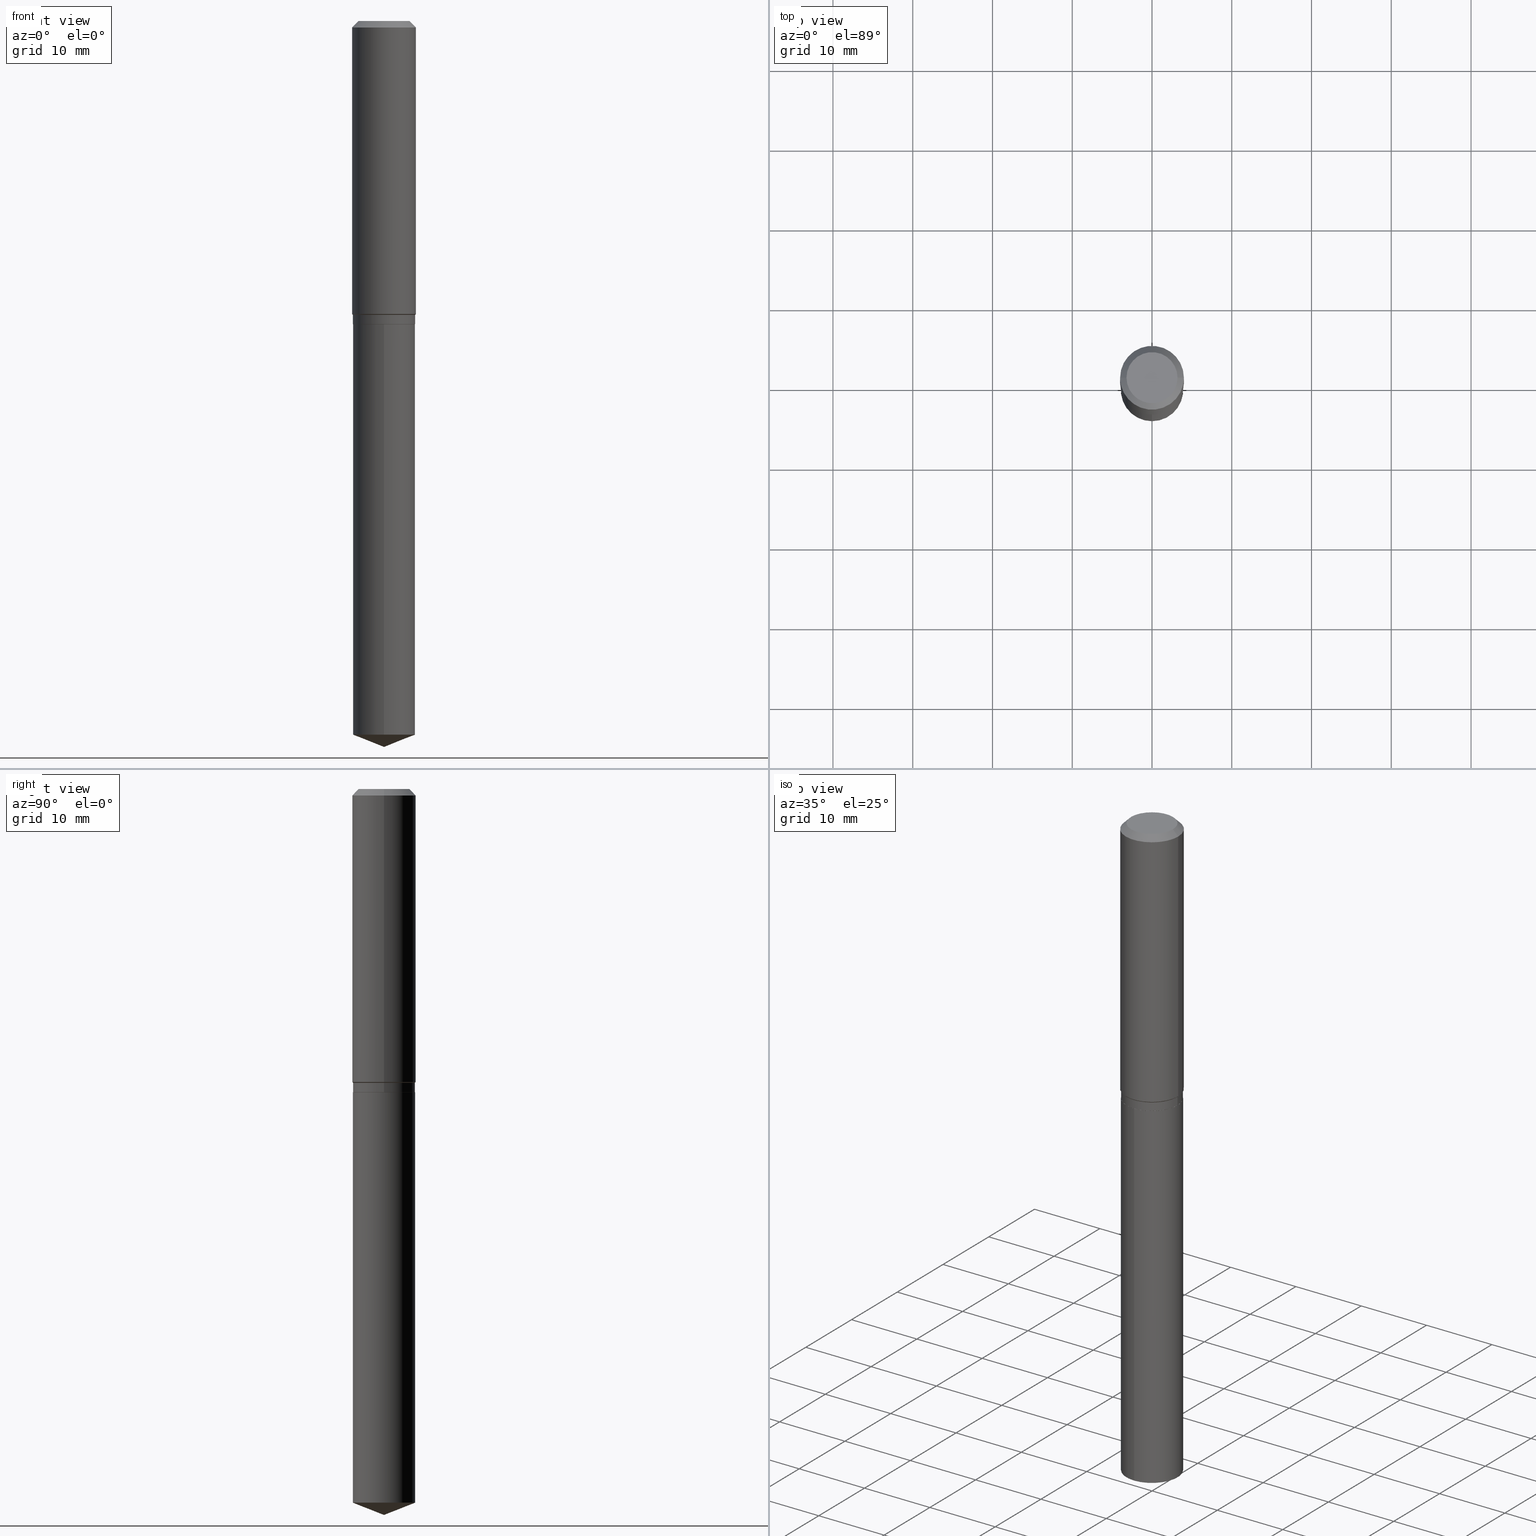
[diagram: canonical four-view strip — front | top / right | iso, engineering-drawing reading convention]
A machine part, canonical four-view strip (front | top / right | iso — engineering-drawing reading convention). The complete STEP part file that produces these views, byte-faithful:
ISO-10303-21;
HEADER;
FILE_DESCRIPTION (( 'STEP AP203' ),
    '1' );
FILE_NAME ('66551.STEP',
    '2024-04-25T00:47:38',
    ( '' ),
    ( '' ),
    'SwSTEP 2.0',
    'SolidWorks 2023',
    '' );
FILE_SCHEMA (( 'CONFIG_CONTROL_DESIGN' ));
ENDSEC;

DATA;
#1 = CC_DESIGN_PERSON_AND_ORGANIZATION_ASSIGNMENT ( #397, #434, ( #461 ) ) ;
#2 = ORIENTED_EDGE ( 'NONE', *, *, #449, .F. ) ;
#3 = FACE_OUTER_BOUND ( 'NONE', #119, .T. ) ;
#4 = CYLINDRICAL_SURFACE ( 'NONE', #117, 0.1535499999999999921 ) ;
#5 = ORIENTED_EDGE ( 'NONE', *, *, #444, .F. ) ;
#6 = CYLINDRICAL_SURFACE ( 'NONE', #427, 0.1575000000000000844 ) ;
#7 = APPLICATION_CONTEXT ( 'configuration controlled 3d designs of mechanical parts and assemblies' ) ;
#8 = VECTOR ( 'NONE', #86, 39.37007874015748143 ) ;
#9 = AXIS2_PLACEMENT_3D ( 'NONE', #305, #76, #162 ) ;
#10 = CIRCLE ( 'NONE', #19, 0.1530499999999999916 ) ;
#11 = LINE ( 'NONE', #173, #236 ) ;
#12 = DIRECTION ( 'NONE',  ( 0.000000000000000000, 0.000000000000000000, 1.000000000000000000 ) ) ;
#13 = DIRECTION ( 'NONE',  ( -6.982962677686265922E-15, -1.000000000000000000, 3.498627837350033410E-15 ) ) ;
#14 = APPROVAL_ROLE ( '' ) ;
#15 = FACE_OUTER_BOUND ( 'NONE', #364, .T. ) ;
#16 = ORIENTED_EDGE ( 'NONE', *, *, #261, .T. ) ;
#17 = DIRECTION ( 'NONE',  ( -2.445468806185136597E-29, 3.491481338843145583E-15, 1.000000000000000000 ) ) ;
#18 = CIRCLE ( 'NONE', #322, 0.1535499999999999921 ) ;
#19 = AXIS2_PLACEMENT_3D ( 'NONE', #194, #341, #197 ) ;
#20 = DIRECTION ( 'NONE',  ( 2.445468806185136597E-29, -3.491481338843145583E-15, -1.000000000000000000 ) ) ;
#21 = ORIENTED_EDGE ( 'NONE', *, *, #242, .T. ) ;
#22 = APPROVAL ( #94, 'UNSPECIFIED' ) ;
#23 = DATE_AND_TIME ( #372, #79 ) ;
#24 = ORIENTED_EDGE ( 'NONE', *, *, #261, .F. ) ;
#25 = DIRECTION ( 'NONE',  ( -2.445425864037539637E-29, 3.491542834442619495E-15, 1.000000000000000000 ) ) ;
#26 = ORIENTED_EDGE ( 'NONE', *, *, #314, .F. ) ;
#27 = ORIENTED_EDGE ( 'NONE', *, *, #42, .T. ) ;
#28 = EDGE_CURVE ( 'NONE', #477, #192, #245, .T. ) ;
#29 = AXIS2_PLACEMENT_3D ( 'NONE', #458, #159, #487 ) ;
#30 = CC_DESIGN_SECURITY_CLASSIFICATION ( #110, ( #37 ) ) ;
#31 = ORIENTED_EDGE ( 'NONE', *, *, #123, .F. ) ;
#32 = ORIENTED_EDGE ( 'NONE', *, *, #242, .F. ) ;
#33 = CARTESIAN_POINT ( 'NONE',  ( 8.762090515050494278E-29, -1.251001393177779982E-14, -3.583000000000000185 ) ) ;
#34 = ORIENTED_EDGE ( 'NONE', *, *, #414, .F. ) ;
#35 = CARTESIAN_POINT ( 'NONE',  ( -8.751458369089940116E-28, 1.249522103628457051E-13, 35.78707874015748303 ) ) ;
#36 = ORIENTED_EDGE ( 'NONE', *, *, #80, .F. ) ;
#37 = PRODUCT_DEFINITION_FORMATION_WITH_SPECIFIED_SOURCE ( 'ANY', '', #461, .NOT_KNOWN. ) ;
#38 = DIRECTION ( 'NONE',  ( -2.445468806185136597E-29, 3.491481338843145583E-15, 1.000000000000000000 ) ) ;
#39 = DIRECTION ( 'NONE',  ( -2.445425864037539356E-29, 3.491542834442619101E-15, 1.000000000000000000 ) ) ;
#40 = DIRECTION ( 'NONE',  ( -2.445425864037539637E-29, 3.491542834442619495E-15, 1.000000000000000000 ) ) ;
#41 = CARTESIAN_POINT ( 'NONE',  ( 0.000000000000000000, 0.000000000000000000, 0.000000000000000000 ) ) ;
#42 = EDGE_CURVE ( 'NONE', #435, #148, #413, .T. ) ;
#43 = DIRECTION ( 'NONE',  ( 6.982962677686265922E-15, 1.000000000000000000, -3.491542834442619101E-15 ) ) ;
#44 = CONICAL_SURFACE ( 'NONE', #97, 0.1535499999999999921, 0.7853981633974569387 ) ;
#45 = VERTEX_POINT ( 'NONE', #262 ) ;
#46 = DIRECTION ( 'NONE',  ( -2.445468806185136597E-29, 3.491481338843145583E-15, 1.000000000000000000 ) ) ;
#47 = FACE_OUTER_BOUND ( 'NONE', #324, .T. ) ;
#48 = ORIENTED_EDGE ( 'NONE', *, *, #65, .T. ) ;
#49 = CARTESIAN_POINT ( 'NONE',  ( 0.1535499999999999921, -6.134532712347401777E-15, -1.449899999999999745 ) ) ;
#50 = EDGE_CURVE ( 'NONE', #149, #381, #72, .T. ) ;
#51 =( LENGTH_UNIT ( ) NAMED_UNIT ( * ) SI_UNIT ( $, .METRE. ) );
#52 = CARTESIAN_POINT ( 'NONE',  ( -0.1535499999999999921, -4.051564493222435157E-15, -1.495900000000000230 ) ) ;
#53 = LOCAL_TIME ( 20, 47, 38.00000000000000000, #425 ) ;
#54 = CALENDAR_DATE ( 2024, 24, 4 ) ;
#55 = DIRECTION ( 'NONE',  ( -2.445468806185136877E-29, 3.491481338843145188E-15, 1.000000000000000000 ) ) ;
#56 = MECHANICAL_CONTEXT ( 'NONE', #430, 'mechanical' ) ;
#57 = ORIENTED_EDGE ( 'NONE', *, *, #476, .T. ) ;
#58 = APPLICATION_PROTOCOL_DEFINITION ( 'international standard', 'config_control_design', 1994, #7 ) ;
#59 = CARTESIAN_POINT ( 'NONE',  ( 0.1575000000000000011, -1.209798283909146741E-15, -0.03150000000000019451 ) ) ;
#60 = PRODUCT_RELATED_PRODUCT_CATEGORY ( 'detail', '', ( #461 ) ) ;
#61 = ORIENTED_EDGE ( 'NONE', *, *, #391, .T. ) ;
#62 = CIRCLE ( 'NONE', #222, 0.1535499999999999643 ) ;
#63 = ADVANCED_BREP_SHAPE_REPRESENTATION ( '66551', ( #278, #115, #87 ), #252 ) ;
#64 = EDGE_LOOP ( 'NONE', ( #332, #361, #36 ) ) ;
#65 = EDGE_CURVE ( 'NONE', #192, #442, #342, .T. ) ;
#66 = PERSON_AND_ORGANIZATION ( #90, #267 ) ;
#67 = ORIENTED_EDGE ( 'NONE', *, *, #330, .T. ) ;
#68 = APPROVAL_ROLE ( '' ) ;
#69 = VERTEX_POINT ( 'NONE', #219 ) ;
#70 = CIRCLE ( 'NONE', #356, 0.1535499999999999921 ) ;
#71 = AXIS2_PLACEMENT_3D ( 'NONE', #287, #17, #203 ) ;
#72 = LINE ( 'NONE', #121, #308 ) ;
#73 = APPROVAL_STATUS ( 'not_yet_approved' ) ;
#74 = EDGE_LOOP ( 'NONE', ( #57, #181, #386, #410 ) ) ;
#75 = ORIENTED_EDGE ( 'NONE', *, *, #123, .T. ) ;
#76 = DIRECTION ( 'NONE',  ( -2.445468806185136597E-29, 3.491481338843145583E-15, 1.000000000000000000 ) ) ;
#77 = VECTOR ( 'NONE', #272, 39.37007874015748854 ) ;
#78 = DIRECTION ( 'NONE',  ( 1.000000000000000000, -6.982962677686266711E-15, 4.876176775795935793E-29 ) ) ;
#79 = LOCAL_TIME ( 20, 47, 38.00000000000000000, #150 ) ;
#80 = EDGE_CURVE ( 'NONE', #145, #438, #153, .T. ) ;
#81 = CARTESIAN_POINT ( 'NONE',  ( -1.072233919158689464E-15, -0.1535500000000052101, -1.496399999999999730 ) ) ;
#82 = CARTESIAN_POINT ( 'NONE',  ( 0.1530499999999999916, -6.293395113264767279E-15, -1.496400000000000396 ) ) ;
#83 = ADVANCED_FACE ( 'NONE', ( #186 ), #336, .F. ) ;
#84 = DIRECTION ( 'NONE',  ( 6.611014441532059489E-15, 0.9304175679820261280, 0.3665012267242931943 ) ) ;
#85 = DIRECTION ( 'NONE',  ( 1.000000000000000000, -6.982962677686267499E-15, 0.000000000000000000 ) ) ;
#86 = DIRECTION ( 'NONE',  ( -2.445468806185136877E-29, 3.491481338843145188E-15, 1.000000000000000000 ) ) ;
#87 = AXIS2_PLACEMENT_3D ( 'NONE', #283, #12, #423 ) ;
#88 = ORIENTED_EDGE ( 'NONE', *, *, #28, .F. ) ;
#89 = DIRECTION ( 'NONE',  ( -6.982962677686266711E-15, -1.000000000000000000, 3.558252026915354491E-15 ) ) ;
#90 = PERSON ( 'UNSPECIFIED', 'UNSPECIFIED', 'UNSPECIFIED', ('UNSPECIFIED'), ('UNSPECIFIED'), ('UNSPECIFIED') ) ;
#91 = UNCERTAINTY_MEASURE_WITH_UNIT (LENGTH_MEASURE( 1.000000000000000082E-05 ), #249, 'distance_accuracy_value', 'NONE');
#92 = DIRECTION ( 'NONE',  ( -2.438088387897960049E-29, 3.491481338843145188E-15, 1.000000000000000000 ) ) ;
#93 = CC_DESIGN_DATE_AND_TIME_ASSIGNMENT ( #404, #220, ( #110 ) ) ;
#94 = APPROVAL_STATUS ( 'not_yet_approved' ) ;
#95 = DIRECTION ( 'NONE',  ( -0.7071067811865534569, 7.493145998870374671E-15, 0.7071067811865413555 ) ) ;
#96 = PERSON_AND_ORGANIZATION ( #90, #267 ) ;
#97 = AXIS2_PLACEMENT_3D ( 'NONE', #417, #419, #196 ) ;
#98 = DATE_AND_TIME ( #136, #135 ) ;
#99 = CARTESIAN_POINT ( 'NONE',  ( 0.1575000000000000844, -1.099816621735587677E-15, 7.679978421878603638E-30 ) ) ;
#100 = PERSON_AND_ORGANIZATION ( #90, #267 ) ;
#101 = ADVANCED_FACE ( 'NONE', ( #47 ), #204, .T. ) ;
#102 = FACE_OUTER_BOUND ( 'NONE', #402, .T. ) ;
#103 = ORIENTED_EDGE ( 'NONE', *, *, #311, .T. ) ;
#104 = APPROVAL_DATE_TIME ( #98, #22 ) ;
#105 = DIRECTION ( 'NONE',  ( -1.000000000000000000, 6.982962677686265922E-15, 0.000000000000000000 ) ) ;
#106 = EDGE_CURVE ( 'NONE', #145, #148, #384, .T. ) ;
#107 = ORIENTED_EDGE ( 'NONE', *, *, #250, .F. ) ;
#108 = CLOSED_SHELL ( 'NONE', ( #179, #398, #146, #436, #187, #385, #189, #366, #339, #156, #83, #256 ) ) ;
#109 = VECTOR ( 'NONE', #426, 39.37007874015748143 ) ;
#110 = SECURITY_CLASSIFICATION ( '', '', #408 ) ;
#111 = CARTESIAN_POINT ( 'NONE',  ( 8.614113659727150251E-29, -1.229892014770123314E-14, -3.522515046469325561 ) ) ;
#112 = ADVANCED_FACE ( 'NONE', ( #131 ), #241, .F. ) ;
#113 = COORDINATED_UNIVERSAL_TIME_OFFSET ( 5, 0, .BEHIND. ) ;
#114 = EDGE_LOOP ( 'NONE', ( #368, #151, #75, #447 ) ) ;
#115 = MANIFOLD_SOLID_BREP ( 'Body-Move/Copy2[2]', #108 ) ;
#116 = DIRECTION ( 'NONE',  ( 1.000000000000000000, -6.982962677686265922E-15, 0.000000000000000000 ) ) ;
#117 = AXIS2_PLACEMENT_3D ( 'NONE', #269, #412, #78 ) ;
#118 = APPROVAL_PERSON_ORGANIZATION ( #96, #235, #14 ) ;
#119 = EDGE_LOOP ( 'NONE', ( #473, #411, #327, #273 ) ) ;
#120 = EDGE_CURVE ( 'NONE', #255, #442, #215, .T. ) ;
#121 = CARTESIAN_POINT ( 'NONE',  ( -0.1575000000000000011, 9.898349595620272334E-16, -0.03150000000000019451 ) ) ;
#122 = DIRECTION ( 'NONE',  ( 1.000000000000000000, -6.982962677686265922E-15, 0.000000000000000000 ) ) ;
#123 = EDGE_CURVE ( 'NONE', #45, #69, #276, .T. ) ;
#124 = LINE ( 'NONE', #460, #169 ) ;
#125 = VECTOR ( 'NONE', #39, 39.37007874015748143 ) ;
#126 = CARTESIAN_POINT ( 'NONE',  ( 8.614113659727150251E-29, -1.229892014770123314E-14, -3.522515046469325561 ) ) ;
#127 = CIRCLE ( 'NONE', #286, 0.1575000000000001676 ) ;
#128 = CARTESIAN_POINT ( 'NONE',  ( 3.536025620303397046E-29, -5.048507441900244569E-15, -1.445949999999999624 ) ) ;
#129 = CARTESIAN_POINT ( 'NONE',  ( -1.072233919158639569E-15, -0.1535500000000122045, -3.522515046469325117 ) ) ;
#130 = DIRECTION ( 'NONE',  ( 1.000000000000000000, -6.982962677686267499E-15, 4.876176775795936353E-29 ) ) ;
#131 = FACE_OUTER_BOUND ( 'NONE', #260, .T. ) ;
#132 = CARTESIAN_POINT ( 'NONE',  ( 7.703226739483226971E-31, -1.099816621735597538E-16, -0.03150000000000019451 ) ) ;
#133 = LINE ( 'NONE', #365, #294 ) ;
#134 = CONICAL_SURFACE ( 'NONE', #285, 0.1530499999999999916, 0.7853981633972775267 ) ;
#135 = LOCAL_TIME ( 20, 47, 38.00000000000000000, #138 ) ;
#136 = CALENDAR_DATE ( 2024, 24, 4 ) ;
#137 = DIRECTION ( 'NONE',  ( -6.497071151882111948E-15, -0.9304175679820234635, 0.3665012267242997446 ) ) ;
#138 = COORDINATED_UNIVERSAL_TIME_OFFSET ( 5, 0, .BEHIND. ) ;
#139 = PERSON_AND_ORGANIZATION_ROLE ( 'design_supplier' ) ;
#140 = CARTESIAN_POINT ( 'NONE',  ( 3.545685222087828945E-29, -5.062298793188675631E-15, -1.449899999999999745 ) ) ;
#141 = EDGE_CURVE ( 'NONE', #438, #145, #62, .T. ) ;
#142 = DIRECTION ( 'NONE',  ( 1.000000000000000000, -6.982962677686269077E-15, 0.000000000000000000 ) ) ;
#143 = ORIENTED_EDGE ( 'NONE', *, *, #301, .F. ) ;
#144 = CARTESIAN_POINT ( 'NONE',  ( 3.659399521575439863E-29, -5.224652675444884140E-15, -1.496400000000000396 ) ) ;
#145 = VERTEX_POINT ( 'NONE', #422 ) ;
#146 = ADVANCED_FACE ( 'NONE', ( #195 ), #6, .T. ) ;
#147 = AXIS2_PLACEMENT_3D ( 'NONE', #165, #201, #43 ) ;
#148 = VERTEX_POINT ( 'NONE', #450 ) ;
#149 = VERTEX_POINT ( 'NONE', #486 ) ;
#150 = COORDINATED_UNIVERSAL_TIME_OFFSET ( 5, 0, .BEHIND. ) ;
#151 = ORIENTED_EDGE ( 'NONE', *, *, #314, .T. ) ;
#152 = CC_DESIGN_PERSON_AND_ORGANIZATION_ASSIGNMENT ( #170, #139, ( #37 ) ) ;
#153 = CIRCLE ( 'NONE', #266, 0.1535499999999999643 ) ;
#154 = CARTESIAN_POINT ( 'NONE',  ( 3.659399521575438742E-29, -5.224652675444883351E-15, -1.496400000000000174 ) ) ;
#155 = DIRECTION ( 'NONE',  ( -2.445425864037539637E-29, 3.491542834442619495E-15, 1.000000000000000000 ) ) ;
#156 = ADVANCED_FACE ( 'NONE', ( #312 ), #306, .F. ) ;
#157 = EDGE_LOOP ( 'NONE', ( #143, #239, #471, #26 ) ) ;
#158 = DIRECTION ( 'NONE',  ( -0.7071067811864267805, 7.493145998869918709E-15, 0.7071067811866682540 ) ) ;
#159 = DIRECTION ( 'NONE',  ( -2.445425864037539637E-29, 3.491542834442619495E-15, 1.000000000000000000 ) ) ;
#160 = DIRECTION ( 'NONE',  ( 2.445468806185136597E-29, -3.491481338843145583E-15, -1.000000000000000000 ) ) ;
#161 = CARTESIAN_POINT ( 'NONE',  ( 1.794263039509881988E-29, -7.895634274738714371E-15, -1.496400000000000396 ) ) ;
#162 = DIRECTION ( 'NONE',  ( 1.000000000000000000, -6.982962677686269077E-15, 0.000000000000000000 ) ) ;
#163 = DIRECTION ( 'NONE',  ( 2.438088387897960049E-29, -3.491481338843145188E-15, -1.000000000000000000 ) ) ;
#164 = DIRECTION ( 'NONE',  ( -1.000000000000000000, 6.982962677686265922E-15, 0.000000000000000000 ) ) ;
#165 = CARTESIAN_POINT ( 'NONE',  ( 3.659399521575438742E-29, -5.224652675444883351E-15, -1.496400000000000174 ) ) ;
#166 =( NAMED_UNIT ( * ) PLANE_ANGLE_UNIT ( ) SI_UNIT ( $, .RADIAN. ) );
#167 = DIRECTION ( 'NONE',  ( -2.445468806185136597E-29, 3.491481338843145583E-15, 1.000000000000000000 ) ) ;
#168 = CIRCLE ( 'NONE', #446, 0.1575000000000000011 ) ;
#169 = VECTOR ( 'NONE', #158, 39.37007874015748143 ) ;
#170 = PERSON_AND_ORGANIZATION ( #90, #267 ) ;
#171 = DIRECTION ( 'NONE',  ( -2.445468806185136597E-29, 3.491481338843145583E-15, 1.000000000000000000 ) ) ;
#172 = APPROVAL_DATE_TIME ( #209, #235 ) ;
#173 = CARTESIAN_POINT ( 'NONE',  ( -0.1535499999999999921, 1.091038370759633779E-15, -7.553024831086407873E-30 ) ) ;
#174 = ORIENTED_EDGE ( 'NONE', *, *, #391, .F. ) ;
#175 = CIRCLE ( 'NONE', #369, 0.1575000000000001676 ) ;
#176 = AXIS2_PLACEMENT_3D ( 'NONE', #35, #155, #303 ) ;
#177 = APPLICATION_PROTOCOL_DEFINITION ( 'international standard', 'config_control_design', 1994, #430 ) ;
#178 = EDGE_LOOP ( 'NONE', ( #107, #445, #396 ) ) ;
#179 = ADVANCED_FACE ( 'NONE', ( #310 ), #468, .T. ) ;
#180 = ORIENTED_EDGE ( 'NONE', *, *, #482, .T. ) ;
#181 = ORIENTED_EDGE ( 'NONE', *, *, #301, .T. ) ;
#182 = AXIS2_PLACEMENT_3D ( 'NONE', #248, #395, #246 ) ;
#183 = AXIS2_PLACEMENT_3D ( 'NONE', #483, #420, #89 ) ;
#184 = ORIENTED_EDGE ( 'NONE', *, *, #65, .F. ) ;
#185 = PERSON_AND_ORGANIZATION ( #90, #267 ) ;
#186 = FACE_OUTER_BOUND ( 'NONE', #443, .T. ) ;
#187 = ADVANCED_FACE ( 'NONE', ( #452 ), #4, .T. ) ;
#188 = ORIENTED_EDGE ( 'NONE', *, *, #476, .F. ) ;
#189 = ADVANCED_FACE ( 'NONE', ( #378 ), #44, .T. ) ;
#190 = FACE_OUTER_BOUND ( 'NONE', #157, .T. ) ;
#191 = CONICAL_SURFACE ( 'NONE', #247, 0.1575000000000000011, 0.7853981633974450594 ) ;
#192 = VERTEX_POINT ( 'NONE', #82 ) ;
#193 = EDGE_CURVE ( 'NONE', #442, #45, #231, .T. ) ;
#194 = CARTESIAN_POINT ( 'NONE',  ( 3.659399521575439863E-29, -5.224652675444884140E-15, -1.496400000000000396 ) ) ;
#195 = FACE_OUTER_BOUND ( 'NONE', #251, .T. ) ;
#196 = DIRECTION ( 'NONE',  ( 1.000000000000000000, -6.982962677686269077E-15, 0.000000000000000000 ) ) ;
#197 = DIRECTION ( 'NONE',  ( 1.000000000000000000, -6.982962677686265922E-15, 0.000000000000000000 ) ) ;
#198 = CARTESIAN_POINT ( 'NONE',  ( 0.1260000000000000009, -1.027466422270894443E-15, 3.860086710919128072E-18 ) ) ;
#199 = CONICAL_SURFACE ( 'NONE', #454, 0.1575000000000000011, 0.7853981633974450594 ) ;
#200 = DIRECTION ( 'NONE',  ( 1.000000000000000000, -6.982962677686265922E-15, 0.000000000000000000 ) ) ;
#201 = DIRECTION ( 'NONE',  ( 2.445425864037539637E-29, -3.491542834442619101E-15, -1.000000000000000000 ) ) ;
#202 = ORIENTED_EDGE ( 'NONE', *, *, #409, .T. ) ;
#203 = DIRECTION ( 'NONE',  ( 1.000000000000000000, -6.982962677686269077E-15, 0.000000000000000000 ) ) ;
#204 = CYLINDRICAL_SURFACE ( 'NONE', #29, 0.1535499999999999921 ) ;
#205 =( NAMED_UNIT ( * ) SI_UNIT ( $, .STERADIAN. ) SOLID_ANGLE_UNIT ( ) );
#206 = DIRECTION ( 'NONE',  ( -2.445425864037539637E-29, 3.491542834442619495E-15, 1.000000000000000000 ) ) ;
#207 = CIRCLE ( 'NONE', #401, 0.1535499999999999921 ) ;
#208 = VECTOR ( 'NONE', #211, 39.37007874015748143 ) ;
#209 = DATE_AND_TIME ( #54, #259 ) ;
#210 = DIRECTION ( 'NONE',  ( -2.445468806185136877E-29, 3.491481338843145188E-15, 1.000000000000000000 ) ) ;
#211 = DIRECTION ( 'NONE',  ( -2.445425864037539356E-29, 3.491542834442619101E-15, 1.000000000000000000 ) ) ;
#212 = VERTEX_POINT ( 'NONE', #456 ) ;
#213 = LINE ( 'NONE', #326, #208 ) ;
#214 = CARTESIAN_POINT ( 'NONE',  ( 3.659399521575438742E-29, -5.224652675444883351E-15, -1.496400000000000174 ) ) ;
#215 = CIRCLE ( 'NONE', #229, 0.1535499999999999921 ) ;
#216 = APPROVAL_DATE_TIME ( #23, #228 ) ;
#217 = ORIENTED_EDGE ( 'NONE', *, *, #360, .T. ) ;
#218 = ORIENTED_EDGE ( 'NONE', *, *, #330, .F. ) ;
#219 = CARTESIAN_POINT ( 'NONE',  ( 0.1575000000000001676, -6.148324063635832838E-15, -1.445949999999999624 ) ) ;
#220 = DATE_TIME_ROLE ( 'classification_date' ) ;
#221 = ORIENTED_EDGE ( 'NONE', *, *, #80, .T. ) ;
#222 = AXIS2_PLACEMENT_3D ( 'NONE', #126, #40, #355 ) ;
#223 = CIRCLE ( 'NONE', #71, 0.1535499999999999921 ) ;
#224 = EDGE_CURVE ( 'NONE', #349, #69, #175, .T. ) ;
#225 = CARTESIAN_POINT ( 'NONE',  ( 0.1530499999999999916, -6.293395113264767279E-15, -1.496400000000000396 ) ) ;
#226 = ORIENTED_EDGE ( 'NONE', *, *, #414, .T. ) ;
#227 = DIRECTION ( 'NONE',  ( -0.7071067811865452413, 2.468850131082233000E-15, -0.7071067811865497932 ) ) ;
#228 = APPROVAL ( #73, 'UNSPECIFIED' ) ;
#229 = AXIS2_PLACEMENT_3D ( 'NONE', #388, #264, #345 ) ;
#230 = CARTESIAN_POINT ( 'NONE',  ( 0.000000000000000000, 0.000000000000000000, 0.000000000000000000 ) ) ;
#231 = LINE ( 'NONE', #313, #8 ) ;
#232 = DIRECTION ( 'NONE',  ( 1.000000000000000000, -6.982962677686265922E-15, 4.876176775795935793E-29 ) ) ;
#233 = VERTEX_POINT ( 'NONE', #198 ) ;
#234 = DIRECTION ( 'NONE',  ( -2.445468806185136877E-29, 3.491481338843145188E-15, 1.000000000000000000 ) ) ;
#235 = APPROVAL ( #244, 'UNSPECIFIED' ) ;
#236 = VECTOR ( 'NONE', #210, 39.37007874015748143 ) ;
#237 = CARTESIAN_POINT ( 'NONE',  ( -9.439721640706201686E-47, 1.347742071746726764E-32, 3.860086710912459732E-18 ) ) ;
#238 = CC_DESIGN_APPROVAL ( #228, ( #110 ) ) ;
#239 = ORIENTED_EDGE ( 'NONE', *, *, #120, .T. ) ;
#240 = FACE_OUTER_BOUND ( 'NONE', #178, .T. ) ;
#241 = PLANE ( 'NONE',  #147 ) ;
#242 = EDGE_CURVE ( 'NONE', #233, #149, #440, .T. ) ;
#243 = FACE_OUTER_BOUND ( 'NONE', #433, .T. ) ;
#244 = APPROVAL_STATUS ( 'not_yet_approved' ) ;
#245 = CIRCLE ( 'NONE', #375, 0.1530499999999999916 ) ;
#246 = DIRECTION ( 'NONE',  ( 1.000000000000000000, -6.982962677686265922E-15, 4.876281427513067258E-29 ) ) ;
#247 = AXIS2_PLACEMENT_3D ( 'NONE', #437, #20, #105 ) ;
#248 = CARTESIAN_POINT ( 'NONE',  ( -9.439721640706201686E-47, 1.347742071746726764E-32, 3.860086710912459732E-18 ) ) ;
#249 =( CONVERSION_BASED_UNIT ( 'INCH', #354 ) LENGTH_UNIT ( ) NAMED_UNIT ( #441 ) );
#250 = EDGE_CURVE ( 'NONE', #293, #438, #133, .T. ) ;
#251 = EDGE_LOOP ( 'NONE', ( #226, #338, #406, #24 ) ) ;
#252 =( GEOMETRIC_REPRESENTATION_CONTEXT ( 3 ) GLOBAL_UNCERTAINTY_ASSIGNED_CONTEXT ( ( #91 ) ) GLOBAL_UNIT_ASSIGNED_CONTEXT ( ( #249, #166, #205 ) ) REPRESENTATION_CONTEXT ( 'NONE', 'WORKASPACE' ) );
#253 = ORIENTED_EDGE ( 'NONE', *, *, #224, .T. ) ;
#254 = CALENDAR_DATE ( 2024, 24, 4 ) ;
#255 = VERTEX_POINT ( 'NONE', #52 ) ;
#256 = ADVANCED_FACE ( 'NONE', ( #15 ), #134, .T. ) ;
#257 = DIRECTION ( 'NONE',  ( -6.982962677686266711E-15, -1.000000000000000000, 3.558252026915354491E-15 ) ) ;
#258 = VECTOR ( 'NONE', #55, 39.37007874015748143 ) ;
#259 = LOCAL_TIME ( 20, 47, 38.00000000000000000, #390 ) ;
#260 = EDGE_LOOP ( 'NONE', ( #27, #67 ) ) ;
#261 = EDGE_CURVE ( 'NONE', #69, #290, #318, .T. ) ;
#262 = CARTESIAN_POINT ( 'NONE',  ( 0.1535499999999999921, -6.134532712347401777E-15, -1.449899999999999745 ) ) ;
#263 = LINE ( 'NONE', #271, #323 ) ;
#264 = DIRECTION ( 'NONE',  ( -2.445468806185136597E-29, 3.491481338843145583E-15, 1.000000000000000000 ) ) ;
#265 = AXIS2_PLACEMENT_3D ( 'NONE', #154, #302, #257 ) ;
#266 = AXIS2_PLACEMENT_3D ( 'NONE', #111, #367, #371 ) ;
#267 = ORGANIZATION ( 'UNSPECIFIED', 'UNSPECIFIED', '' ) ;
#268 = CARTESIAN_POINT ( 'NONE',  ( 3.659399521575439863E-29, -5.224652675444884140E-15, -1.496400000000000396 ) ) ;
#269 = CARTESIAN_POINT ( 'NONE',  ( 0.000000000000000000, 0.000000000000000000, 0.000000000000000000 ) ) ;
#270 = EDGE_CURVE ( 'NONE', #45, #212, #70, .T. ) ;
#271 = CARTESIAN_POINT ( 'NONE',  ( -0.1575000000000000844, 1.119104808822158392E-15, -7.747322767151481189E-30 ) ) ;
#272 = DIRECTION ( 'NONE',  ( 0.7071067811865534569, -2.468850131082320564E-15, 0.7071067811865413555 ) ) ;
#273 = ORIENTED_EDGE ( 'NONE', *, *, #482, .F. ) ;
#274 = CYLINDRICAL_SURFACE ( 'NONE', #183, 0.1535499999999999921 ) ;
#275 = AXIS2_PLACEMENT_3D ( 'NONE', #161, #92, #232 ) ;
#276 = LINE ( 'NONE', #49, #77 ) ;
#277 = CONICAL_SURFACE ( 'NONE', #9, 0.1535499999999999921, 0.7853981633974569387 ) ;
#278 = MANIFOLD_SOLID_BREP ( 'Body-Move/Copy2[1]', #315 ) ;
#279 = DATE_TIME_ROLE ( 'creation_date' ) ;
#280 = CARTESIAN_POINT ( 'NONE',  ( -0.1535499999999999921, -3.971260422429042049E-15, -1.449899999999999745 ) ) ;
#281 = PERSON_AND_ORGANIZATION_ROLE ( 'creator' ) ;
#282 = CARTESIAN_POINT ( 'NONE',  ( 8.761960870846505279E-29, -1.251019797580790401E-14, -3.583000000000000185 ) ) ;
#283 = CARTESIAN_POINT ( 'NONE',  ( 0.000000000000000000, 0.000000000000000000, 0.000000000000000000 ) ) ;
#284 = DIRECTION ( 'NONE',  ( -2.445468806185136597E-29, 3.491481338843145583E-15, 1.000000000000000000 ) ) ;
#285 = AXIS2_PLACEMENT_3D ( 'NONE', #144, #171, #466 ) ;
#286 = AXIS2_PLACEMENT_3D ( 'NONE', #350, #382, #416 ) ;
#287 = CARTESIAN_POINT ( 'NONE',  ( 3.658176787172346501E-29, -5.222906934775461847E-15, -1.495900000000000230 ) ) ;
#288 = ADVANCED_FACE ( 'NONE', ( #328 ), #346, .T. ) ;
#289 = DIRECTION ( 'NONE',  ( -6.982962677686266711E-15, -1.000000000000000000, 3.558252026915354491E-15 ) ) ;
#290 = VERTEX_POINT ( 'NONE', #59 ) ;
#291 = CC_DESIGN_PERSON_AND_ORGANIZATION_ASSIGNMENT ( #358, #321, ( #37 ) ) ;
#292 = DIRECTION ( 'NONE',  ( -2.445468806185136597E-29, 3.491481338843145583E-15, 1.000000000000000000 ) ) ;
#293 = VERTEX_POINT ( 'NONE', #282 ) ;
#294 = VECTOR ( 'NONE', #137, 39.37007874015748854 ) ;
#295 = AXIS2_PLACEMENT_3D ( 'NONE', #132, #46, #200 ) ;
#296 = ORIENTED_EDGE ( 'NONE', *, *, #449, .T. ) ;
#297 = ORIENTED_EDGE ( 'NONE', *, *, #331, .T. ) ;
#298 = DIRECTION ( 'NONE',  ( -2.445468806185136597E-29, 3.491481338843145583E-15, 1.000000000000000000 ) ) ;
#299 = ORIENTED_EDGE ( 'NONE', *, *, #50, .T. ) ;
#300 = VECTOR ( 'NONE', #84, 39.37007874015748143 ) ;
#301 = EDGE_CURVE ( 'NONE', #255, #212, #11, .T. ) ;
#302 = DIRECTION ( 'NONE',  ( -2.445425864037539637E-29, 3.491542834442619495E-15, 1.000000000000000000 ) ) ;
#303 = DIRECTION ( 'NONE',  ( -6.982962677686265922E-15, -1.000000000000000000, 3.498627837350033410E-15 ) ) ;
#304 = DIRECTION ( 'NONE',  ( 0.7071067811864267805, -2.468850131080992517E-15, 0.7071067811866682540 ) ) ;
#305 = CARTESIAN_POINT ( 'NONE',  ( 3.545685222087828945E-29, -5.062298793188675631E-15, -1.449899999999999745 ) ) ;
#306 = PLANE ( 'NONE',  #474 ) ;
#307 = EDGE_CURVE ( 'NONE', #233, #290, #320, .T. ) ;
#308 = VECTOR ( 'NONE', #227, 39.37007874015748143 ) ;
#309 = AXIS2_PLACEMENT_3D ( 'NONE', #357, #298, #130 ) ;
#310 = FACE_OUTER_BOUND ( 'NONE', #472, .T. ) ;
#311 = EDGE_CURVE ( 'NONE', #149, #233, #463, .T. ) ;
#312 = FACE_OUTER_BOUND ( 'NONE', #403, .T. ) ;
#313 = CARTESIAN_POINT ( 'NONE',  ( 0.1535499999999999921, -1.072233919158726146E-15, 7.487369439234659180E-30 ) ) ;
#314 = EDGE_CURVE ( 'NONE', #212, #45, #207, .T. ) ;
#315 = CLOSED_SHELL ( 'NONE', ( #459, #464, #288, #101, #112 ) ) ;
#316 = DESIGN_CONTEXT ( 'detailed design', #7, 'design' ) ;
#317 = LINE ( 'NONE', #280, #453 ) ;
#318 = LINE ( 'NONE', #99, #258 ) ;
#319 = CARTESIAN_POINT ( 'NONE',  ( -0.1530499999999999916, -4.134517791189940256E-15, -1.496400000000000396 ) ) ;
#320 = LINE ( 'NONE', #467, #109 ) ;
#321 = PERSON_AND_ORGANIZATION_ROLE ( 'creator' ) ;
#322 = AXIS2_PLACEMENT_3D ( 'NONE', #214, #206, #289 ) ;
#323 = VECTOR ( 'NONE', #234, 39.37007874015748143 ) ;
#324 = EDGE_LOOP ( 'NONE', ( #329, #221, #180, #218 ) ) ;
#325 = CC_DESIGN_PERSON_AND_ORGANIZATION_ASSIGNMENT ( #100, #281, ( #352 ) ) ;
#326 = CARTESIAN_POINT ( 'NONE',  ( -1.072233919158689464E-15, -0.1535500000000052101, -1.496399999999999730 ) ) ;
#327 = ORIENTED_EDGE ( 'NONE', *, *, #42, .F. ) ;
#328 = FACE_OUTER_BOUND ( 'NONE', #64, .T. ) ;
#329 = ORIENTED_EDGE ( 'NONE', *, *, #106, .F. ) ;
#330 = EDGE_CURVE ( 'NONE', #148, #435, #18, .T. ) ;
#331 = EDGE_CURVE ( 'NONE', #290, #381, #168, .T. ) ;
#332 = ORIENTED_EDGE ( 'NONE', *, *, #370, .F. ) ;
#333 = AXIS2_PLACEMENT_3D ( 'NONE', #268, #167, #122 ) ;
#334 = ORIENTED_EDGE ( 'NONE', *, *, #409, .F. ) ;
#335 = PERSON_AND_ORGANIZATION_ROLE ( 'classification_officer' ) ;
#336 = PLANE ( 'NONE',  #275 ) ;
#337 = SHAPE_DEFINITION_REPRESENTATION ( #484, #63 ) ;
#338 = ORIENTED_EDGE ( 'NONE', *, *, #444, .T. ) ;
#339 = ADVANCED_FACE ( 'NONE', ( #102 ), #191, .T. ) ;
#340 = AXIS2_PLACEMENT_3D ( 'NONE', #237, #348, #462 ) ;
#341 = DIRECTION ( 'NONE',  ( -2.445468806185136597E-29, 3.491481338843145583E-15, 1.000000000000000000 ) ) ;
#342 = LINE ( 'NONE', #225, #439 ) ;
#343 = DIRECTION ( 'NONE',  ( -2.445468806185136597E-29, 3.491481338843145583E-15, 1.000000000000000000 ) ) ;
#344 = FACE_OUTER_BOUND ( 'NONE', #479, .T. ) ;
#345 = DIRECTION ( 'NONE',  ( 1.000000000000000000, -6.982962677686269077E-15, 0.000000000000000000 ) ) ;
#346 = CONICAL_SURFACE ( 'NONE', #407, 99.94676754583913691, 1.195550537616116626 ) ;
#347 = APPROVAL_PERSON_ORGANIZATION ( #66, #228, #68 ) ;
#348 = DIRECTION ( 'NONE',  ( -2.445468806185136597E-29, 3.491481338843145583E-15, 1.000000000000000000 ) ) ;
#349 = VERTEX_POINT ( 'NONE', #424 ) ;
#350 = CARTESIAN_POINT ( 'NONE',  ( 3.536025620303397046E-29, -5.048507441900244569E-15, -1.445949999999999624 ) ) ;
#351 = DIRECTION ( 'NONE',  ( -1.000000000000000000, 6.982962677686265922E-15, -4.876176775795935793E-29 ) ) ;
#352 = PRODUCT_DEFINITION ( 'UNKNOWN', '', #37, #316 ) ;
#353 = ORIENTED_EDGE ( 'NONE', *, *, #50, .F. ) ;
#354 = LENGTH_MEASURE_WITH_UNIT ( LENGTH_MEASURE( 0.02539999999999999897 ), #51 );
#355 = DIRECTION ( 'NONE',  ( -6.982962677686266711E-15, -1.000000000000000000, 3.558252026915355280E-15 ) ) ;
#356 = AXIS2_PLACEMENT_3D ( 'NONE', #363, #292, #400 ) ;
#357 = CARTESIAN_POINT ( 'NONE',  ( 0.000000000000000000, 0.000000000000000000, 0.000000000000000000 ) ) ;
#358 = PERSON_AND_ORGANIZATION ( #90, #267 ) ;
#359 = DATE_AND_TIME ( #387, #53 ) ;
#360 = EDGE_CURVE ( 'NONE', #212, #349, #317, .T. ) ;
#361 = ORIENTED_EDGE ( 'NONE', *, *, #250, .T. ) ;
#362 = PERSON_AND_ORGANIZATION ( #90, #267 ) ;
#363 = CARTESIAN_POINT ( 'NONE',  ( 3.545685222087828945E-29, -5.062298793188675631E-15, -1.449899999999999745 ) ) ;
#364 = EDGE_LOOP ( 'NONE', ( #174, #480, #48, #470 ) ) ;
#365 = CARTESIAN_POINT ( 'NONE',  ( 8.761960870846503037E-29, -1.251019797580790401E-14, -3.583000000000000185 ) ) ;
#366 = ADVANCED_FACE ( 'NONE', ( #243 ), #389, .T. ) ;
#367 = DIRECTION ( 'NONE',  ( -2.445425864037539637E-29, 3.491542834442619495E-15, 1.000000000000000000 ) ) ;
#368 = ORIENTED_EDGE ( 'NONE', *, *, #360, .F. ) ;
#369 = AXIS2_PLACEMENT_3D ( 'NONE', #128, #418, #85 ) ;
#370 = EDGE_CURVE ( 'NONE', #293, #145, #428, .T. ) ;
#371 = DIRECTION ( 'NONE',  ( -6.982962677686266711E-15, -1.000000000000000000, 3.558252026915355280E-15 ) ) ;
#372 = CALENDAR_DATE ( 2024, 24, 4 ) ;
#373 = CARTESIAN_POINT ( 'NONE',  ( 3.659399521575439863E-29, -5.224652675444884140E-15, -1.496400000000000396 ) ) ;
#374 = DIRECTION ( 'NONE',  ( -2.445468806185136597E-29, 3.491481338843145583E-15, 1.000000000000000000 ) ) ;
#375 = AXIS2_PLACEMENT_3D ( 'NONE', #373, #374, #116 ) ;
#376 = AXIS2_PLACEMENT_3D ( 'NONE', #41, #38, #448 ) ;
#377 = CYLINDRICAL_SURFACE ( 'NONE', #376, 0.1535499999999999921 ) ;
#378 = FACE_OUTER_BOUND ( 'NONE', #114, .T. ) ;
#379 = DIRECTION ( 'NONE',  ( 1.000000000000000000, -6.982962677686267499E-15, 4.876176775795936353E-29 ) ) ;
#380 = CARTESIAN_POINT ( 'NONE',  ( 1.091038370759670264E-15, 0.1535499999999947740, -1.496400000000000841 ) ) ;
#381 = VERTEX_POINT ( 'NONE', #455 ) ;
#382 = DIRECTION ( 'NONE',  ( -2.445468806185136597E-29, 3.491481338843145583E-15, 1.000000000000000000 ) ) ;
#383 = CC_DESIGN_APPROVAL ( #235, ( #37 ) ) ;
#384 = LINE ( 'NONE', #380, #125 ) ;
#385 = ADVANCED_FACE ( 'NONE', ( #190 ), #377, .T. ) ;
#386 = ORIENTED_EDGE ( 'NONE', *, *, #270, .F. ) ;
#387 = CALENDAR_DATE ( 2024, 24, 4 ) ;
#388 = CARTESIAN_POINT ( 'NONE',  ( 3.658176787172346501E-29, -5.222906934775461847E-15, -1.495900000000000230 ) ) ;
#389 = CYLINDRICAL_SURFACE ( 'NONE', #309, 0.1575000000000000844 ) ;
#390 = COORDINATED_UNIVERSAL_TIME_OFFSET ( 5, 0, .BEHIND. ) ;
#391 = EDGE_CURVE ( 'NONE', #477, #255, #124, .T. ) ;
#392 = CIRCLE ( 'NONE', #295, 0.1575000000000000011 ) ;
#393 = APPROVAL_ROLE ( '' ) ;
#394 = CC_DESIGN_PERSON_AND_ORGANIZATION_ASSIGNMENT ( #185, #335, ( #110 ) ) ;
#395 = DIRECTION ( 'NONE',  ( -2.445468806185136597E-29, 3.491481338843145583E-15, 1.000000000000000000 ) ) ;
#396 = ORIENTED_EDGE ( 'NONE', *, *, #141, .F. ) ;
#397 = PERSON_AND_ORGANIZATION ( #90, #267 ) ;
#398 = ADVANCED_FACE ( 'NONE', ( #344 ), #199, .T. ) ;
#399 = ORIENTED_EDGE ( 'NONE', *, *, #311, .F. ) ;
#400 = DIRECTION ( 'NONE',  ( 1.000000000000000000, -6.982962677686269077E-15, 0.000000000000000000 ) ) ;
#401 = AXIS2_PLACEMENT_3D ( 'NONE', #140, #284, #142 ) ;
#402 = EDGE_LOOP ( 'NONE', ( #431, #399, #299, #296 ) ) ;
#403 = EDGE_LOOP ( 'NONE', ( #103, #21 ) ) ;
#404 = DATE_AND_TIME ( #254, #488 ) ;
#405 = EDGE_LOOP ( 'NONE', ( #485, #217, #34, #31 ) ) ;
#406 = ORIENTED_EDGE ( 'NONE', *, *, #331, .F. ) ;
#407 = AXIS2_PLACEMENT_3D ( 'NONE', #469, #25, #13 ) ;
#408 = SECURITY_CLASSIFICATION_LEVEL ( 'unclassified' ) ;
#409 = EDGE_CURVE ( 'NONE', #192, #477, #10, .T. ) ;
#410 = ORIENTED_EDGE ( 'NONE', *, *, #193, .F. ) ;
#411 = ORIENTED_EDGE ( 'NONE', *, *, #106, .T. ) ;
#412 = DIRECTION ( 'NONE',  ( -2.445468806185136597E-29, 3.491481338843145583E-15, 1.000000000000000000 ) ) ;
#413 = CIRCLE ( 'NONE', #265, 0.1535499999999999921 ) ;
#414 = EDGE_CURVE ( 'NONE', #69, #349, #127, .T. ) ;
#415 = CONICAL_SURFACE ( 'NONE', #176, 99.94676754583913691, 1.195550537616116626 ) ;
#416 = DIRECTION ( 'NONE',  ( 1.000000000000000000, -6.982962677686267499E-15, 0.000000000000000000 ) ) ;
#417 = CARTESIAN_POINT ( 'NONE',  ( 3.545685222087828945E-29, -5.062298793188675631E-15, -1.449899999999999745 ) ) ;
#418 = DIRECTION ( 'NONE',  ( -2.445468806185136597E-29, 3.491481338843145583E-15, 1.000000000000000000 ) ) ;
#419 = DIRECTION ( 'NONE',  ( -2.445468806185136597E-29, 3.491481338843145583E-15, 1.000000000000000000 ) ) ;
#420 = DIRECTION ( 'NONE',  ( -2.445425864037539637E-29, 3.491542834442619495E-15, 1.000000000000000000 ) ) ;
#421 = CC_DESIGN_DATE_AND_TIME_ASSIGNMENT ( #359, #279, ( #352 ) ) ;
#422 = CARTESIAN_POINT ( 'NONE',  ( 1.091038370759719370E-15, 0.1535499999999876686, -3.522515046469326450 ) ) ;
#423 = DIRECTION ( 'NONE',  ( 1.000000000000000000, 0.000000000000000000, 0.000000000000000000 ) ) ;
#424 = CARTESIAN_POINT ( 'NONE',  ( -0.1575000000000001676, -3.929402633078086177E-15, -1.445949999999999624 ) ) ;
#425 = COORDINATED_UNIVERSAL_TIME_OFFSET ( 5, 0, .BEHIND. ) ;
#426 = DIRECTION ( 'NONE',  ( 0.7071067811865452413, -7.319954787623248157E-15, -0.7071067811865497932 ) ) ;
#427 = AXIS2_PLACEMENT_3D ( 'NONE', #230, #343, #379 ) ;
#428 = LINE ( 'NONE', #33, #300 ) ;
#429 = CARTESIAN_POINT ( 'NONE',  ( 7.703226739483226971E-31, -1.099816621735597538E-16, -0.03150000000000019451 ) ) ;
#430 = APPLICATION_CONTEXT ( 'configuration controlled 3d designs of mechanical parts and assemblies' ) ;
#431 = ORIENTED_EDGE ( 'NONE', *, *, #307, .F. ) ;
#432 = DIRECTION ( 'NONE',  ( 1.000000000000000000, -6.982962677686265922E-15, 0.000000000000000000 ) ) ;
#433 = EDGE_LOOP ( 'NONE', ( #5, #253, #16, #2 ) ) ;
#434 = PERSON_AND_ORGANIZATION_ROLE ( 'design_owner' ) ;
#435 = VERTEX_POINT ( 'NONE', #81 ) ;
#436 = ADVANCED_FACE ( 'NONE', ( #489 ), #277, .T. ) ;
#437 = CARTESIAN_POINT ( 'NONE',  ( 7.703226739483226971E-31, -1.099816621735597538E-16, -0.03150000000000019451 ) ) ;
#438 = VERTEX_POINT ( 'NONE', #129 ) ;
#439 = VECTOR ( 'NONE', #304, 39.37007874015748143 ) ;
#440 = CIRCLE ( 'NONE', #340, 0.1260000000000000009 ) ;
#441 = DIMENSIONAL_EXPONENTS ( 1.000000000000000000, 0.000000000000000000, 0.000000000000000000, 0.000000000000000000, 0.000000000000000000, 0.000000000000000000, 0.000000000000000000 ) ;
#442 = VERTEX_POINT ( 'NONE', #451 ) ;
#443 = EDGE_LOOP ( 'NONE', ( #334, #88 ) ) ;
#444 = EDGE_CURVE ( 'NONE', #349, #381, #263, .T. ) ;
#445 = ORIENTED_EDGE ( 'NONE', *, *, #370, .T. ) ;
#446 = AXIS2_PLACEMENT_3D ( 'NONE', #429, #465, #432 ) ;
#447 = ORIENTED_EDGE ( 'NONE', *, *, #224, .F. ) ;
#448 = DIRECTION ( 'NONE',  ( 1.000000000000000000, -6.982962677686266711E-15, 4.876176775795935793E-29 ) ) ;
#449 = EDGE_CURVE ( 'NONE', #381, #290, #392, .T. ) ;
#450 = CARTESIAN_POINT ( 'NONE',  ( 1.091038370759720356E-15, 0.1535499999999947740, -1.496400000000000841 ) ) ;
#451 = CARTESIAN_POINT ( 'NONE',  ( 0.1535499999999999921, -6.295140853934188782E-15, -1.495900000000000230 ) ) ;
#452 = FACE_OUTER_BOUND ( 'NONE', #74, .T. ) ;
#453 = VECTOR ( 'NONE', #95, 39.37007874015748854 ) ;
#454 = AXIS2_PLACEMENT_3D ( 'NONE', #457, #160, #164 ) ;
#455 = CARTESIAN_POINT ( 'NONE',  ( -0.1575000000000000011, -1.460139743214743621E-15, -0.03150000000000019451 ) ) ;
#456 = CARTESIAN_POINT ( 'NONE',  ( -0.1535499999999999921, -4.051564493222435157E-15, -1.449899999999999745 ) ) ;
#457 = CARTESIAN_POINT ( 'NONE',  ( 7.703226739483226971E-31, -1.099816621735597538E-16, -0.03150000000000019451 ) ) ;
#458 = CARTESIAN_POINT ( 'NONE',  ( 3.659399521575438742E-29, -5.224652675444883351E-15, -1.496400000000000174 ) ) ;
#459 = ADVANCED_FACE ( 'NONE', ( #3 ), #274, .T. ) ;
#460 = CARTESIAN_POINT ( 'NONE',  ( -0.1530499999999999916, -4.137167018364050668E-15, -1.496400000000000396 ) ) ;
#461 = PRODUCT ( '66551', '66551', '', ( #56 ) ) ;
#462 = DIRECTION ( 'NONE',  ( 1.000000000000000000, -6.982962677686265922E-15, 4.876281427513067258E-29 ) ) ;
#463 = CIRCLE ( 'NONE', #182, 0.1260000000000000009 ) ;
#464 = ADVANCED_FACE ( 'NONE', ( #240 ), #415, .T. ) ;
#465 = DIRECTION ( 'NONE',  ( -2.445468806185136597E-29, 3.491481338843145583E-15, 1.000000000000000000 ) ) ;
#466 = DIRECTION ( 'NONE',  ( 1.000000000000000000, -6.982962677686265922E-15, 0.000000000000000000 ) ) ;
#467 = CARTESIAN_POINT ( 'NONE',  ( 0.1575000000000000011, -1.190510096822576026E-15, -0.03150000000000019451 ) ) ;
#468 = CONICAL_SURFACE ( 'NONE', #333, 0.1530499999999999916, 0.7853981633972775267 ) ;
#469 = CARTESIAN_POINT ( 'NONE',  ( -8.751458369089940116E-28, 1.249522103628457051E-13, 35.78707874015748303 ) ) ;
#470 = ORIENTED_EDGE ( 'NONE', *, *, #120, .F. ) ;
#471 = ORIENTED_EDGE ( 'NONE', *, *, #193, .T. ) ;
#472 = EDGE_LOOP ( 'NONE', ( #202, #61, #188, #184 ) ) ;
#473 = ORIENTED_EDGE ( 'NONE', *, *, #141, .T. ) ;
#474 = AXIS2_PLACEMENT_3D ( 'NONE', #490, #163, #351 ) ;
#475 = APPROVAL_PERSON_ORGANIZATION ( #362, #22, #393 ) ;
#476 = EDGE_CURVE ( 'NONE', #442, #255, #223, .T. ) ;
#477 = VERTEX_POINT ( 'NONE', #319 ) ;
#478 = ORIENTED_EDGE ( 'NONE', *, *, #307, .T. ) ;
#479 = EDGE_LOOP ( 'NONE', ( #32, #478, #297, #353 ) ) ;
#480 = ORIENTED_EDGE ( 'NONE', *, *, #28, .T. ) ;
#481 = CC_DESIGN_APPROVAL ( #22, ( #352 ) ) ;
#482 = EDGE_CURVE ( 'NONE', #438, #435, #213, .T. ) ;
#483 = CARTESIAN_POINT ( 'NONE',  ( 3.659399521575438742E-29, -5.224652675444883351E-15, -1.496400000000000174 ) ) ;
#484 = PRODUCT_DEFINITION_SHAPE ( 'NONE', 'NONE',  #352 ) ;
#485 = ORIENTED_EDGE ( 'NONE', *, *, #270, .T. ) ;
#486 = CARTESIAN_POINT ( 'NONE',  ( -0.1260000000000000009, 9.348441284752484904E-16, 3.860086710906114178E-18 ) ) ;
#487 = DIRECTION ( 'NONE',  ( -6.982962677686266711E-15, -1.000000000000000000, 3.558252026915354491E-15 ) ) ;
#488 = LOCAL_TIME ( 20, 47, 38.00000000000000000, #113 ) ;
#489 = FACE_OUTER_BOUND ( 'NONE', #405, .T. ) ;
#490 = CARTESIAN_POINT ( 'NONE',  ( -4.719860820353100843E-47, 6.738710358733633822E-33, 1.930043355456229866E-18 ) ) ;
ENDSEC;
END-ISO-10303-21;
